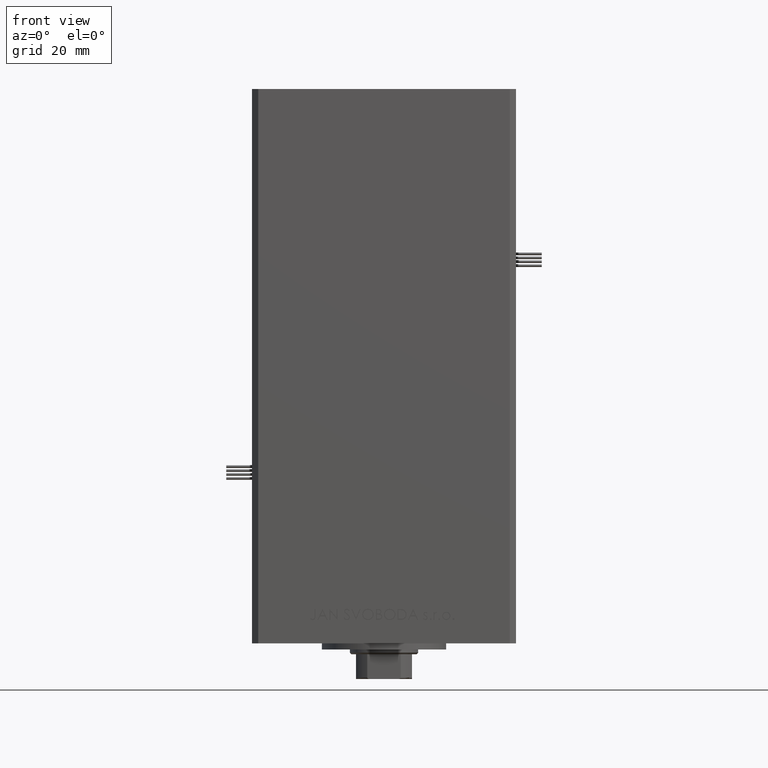
[diagram: clean part render]
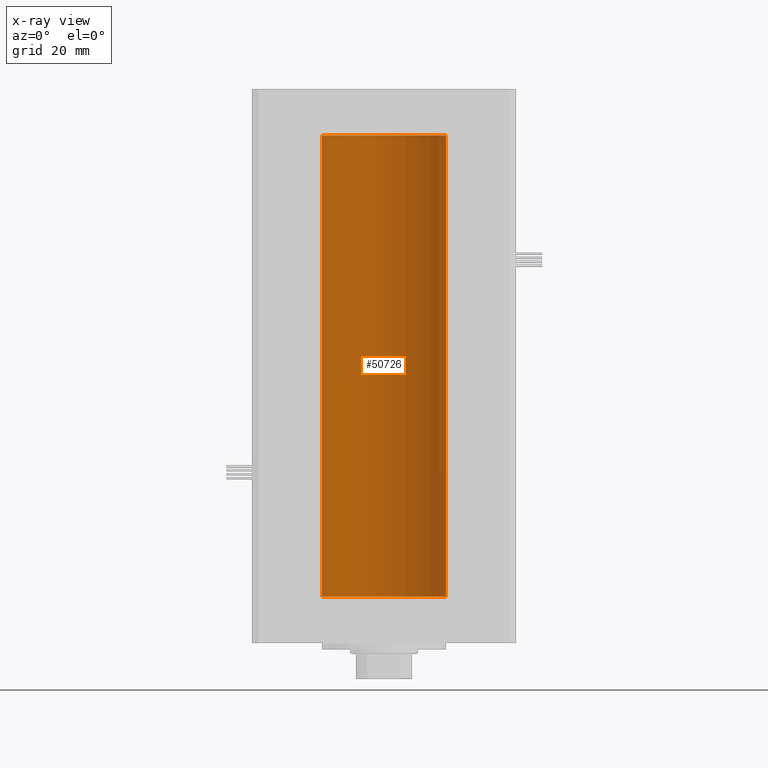
[diagram: x-ray — body ghosted, one internal face saturated and labeled with its STEP entity id]
A machine part, front view, then the same camera in x-ray: the body is ghosted and one INTERNAL B-rep face — a face not visible from any outside direction — is saturated and labeled: STEP entity #50726.
In plain terms, the highlighted cylindrical surface (partial cylindrical patch) has radius 20 mm, axis along (-0, -0, -1).
Its self-contained STEP definition (entity closure, byte-faithful):
#2037 = VERTEX_POINT ( 'NONE', #12852 ) ;
#2237 = LINE ( 'NONE', #18353, #30602 ) ;
#4296 = DIRECTION ( 'NONE',  ( -0.000000000000000000, -0.000000000000000000, -1.000000000000000000 ) ) ;
#5527 = ORIENTED_EDGE ( 'NONE', *, *, #6874, .F. ) ;
#6874 = EDGE_CURVE ( 'NONE', #20136, #40119, #48929, .T. ) ;
#7173 = CARTESIAN_POINT ( 'NONE',  ( 0.000000000000000000, 0.000000000000000000, 0.000000000000000000 ) ) ;
#8758 = ORIENTED_EDGE ( 'NONE', *, *, #44055, .T. ) ;
#11111 = CIRCLE ( 'NONE', #35559, 20.00000000000000000 ) ;
#11392 = CARTESIAN_POINT ( 'NONE',  ( 0.000000000000000000, 0.000000000000000000, 148.5000000000000000 ) ) ;
#12852 = CARTESIAN_POINT ( 'NONE',  ( -20.00000000000000000, 0.000000000000000000, 148.5000000000000000 ) ) ;
#12914 = EDGE_LOOP ( 'NONE', ( #46403, #8758, #31752, #5527 ) ) ;
#13442 = VERTEX_POINT ( 'NONE', #34829 ) ;
#15853 = EDGE_CURVE ( 'NONE', #13442, #20136, #2237, .T. ) ;
#16953 = DIRECTION ( 'NONE',  ( -0.000000000000000000, 0.000000000000000000, 1.000000000000000000 ) ) ;
#18353 = CARTESIAN_POINT ( 'NONE',  ( 20.00000000000000000, 2.449293598294706513E-15, 148.5000000000000000 ) ) ;
#19592 = DIRECTION ( 'NONE',  ( -0.000000000000000000, 0.000000000000000000, 1.000000000000000000 ) ) ;
#20136 = VERTEX_POINT ( 'NONE', #40943 ) ;
#20542 = EDGE_CURVE ( 'NONE', #2037, #40119, #40481, .T. ) ;
#26977 = CYLINDRICAL_SURFACE ( 'NONE', #31859, 20.00000000000000000 ) ;
#27241 = DIRECTION ( 'NONE',  ( -1.000000000000000000, 0.000000000000000000, 0.000000000000000000 ) ) ;
#30602 = VECTOR ( 'NONE', #34482, 1000.000000000000000 ) ;
#31479 = FACE_OUTER_BOUND ( 'NONE', #12914, .T. ) ;
#31752 = ORIENTED_EDGE ( 'NONE', *, *, #20542, .T. ) ;
#31779 = CARTESIAN_POINT ( 'NONE',  ( -20.00000000000000000, 0.000000000000000000, 148.5000000000000000 ) ) ;
#31859 = AXIS2_PLACEMENT_3D ( 'NONE', #11392, #39653, #27241 ) ;
#34482 = DIRECTION ( 'NONE',  ( -0.000000000000000000, -0.000000000000000000, -1.000000000000000000 ) ) ;
#34757 = CARTESIAN_POINT ( 'NONE',  ( -20.00000000000000000, 0.000000000000000000, 0.000000000000000000 ) ) ;
#34829 = CARTESIAN_POINT ( 'NONE',  ( 20.00000000000000000, 2.449293598294706513E-15, 148.5000000000000000 ) ) ;
#35559 = AXIS2_PLACEMENT_3D ( 'NONE', #36249, #16953, #44689 ) ;
#36249 = CARTESIAN_POINT ( 'NONE',  ( 0.000000000000000000, 0.000000000000000000, 148.5000000000000000 ) ) ;
#39653 = DIRECTION ( 'NONE',  ( -0.000000000000000000, -0.000000000000000000, -1.000000000000000000 ) ) ;
#40119 = VERTEX_POINT ( 'NONE', #34757 ) ;
#40481 = LINE ( 'NONE', #31779, #42561 ) ;
#40943 = CARTESIAN_POINT ( 'NONE',  ( 20.00000000000000000, 2.449293598294706513E-15, 0.000000000000000000 ) ) ;
#42561 = VECTOR ( 'NONE', #4296, 1000.000000000000000 ) ;
#44055 = EDGE_CURVE ( 'NONE', #13442, #2037, #11111, .T. ) ;
#44689 = DIRECTION ( 'NONE',  ( 1.000000000000000000, 0.000000000000000000, 0.000000000000000000 ) ) ;
#45569 = AXIS2_PLACEMENT_3D ( 'NONE', #7173, #19592, #47063 ) ;
#46403 = ORIENTED_EDGE ( 'NONE', *, *, #15853, .F. ) ;
#47063 = DIRECTION ( 'NONE',  ( 1.000000000000000000, 0.000000000000000000, 0.000000000000000000 ) ) ;
#48929 = CIRCLE ( 'NONE', #45569, 20.00000000000000000 ) ;
#50726 = ADVANCED_FACE ( 'NONE', ( #31479 ), #26977, .F. ) ;